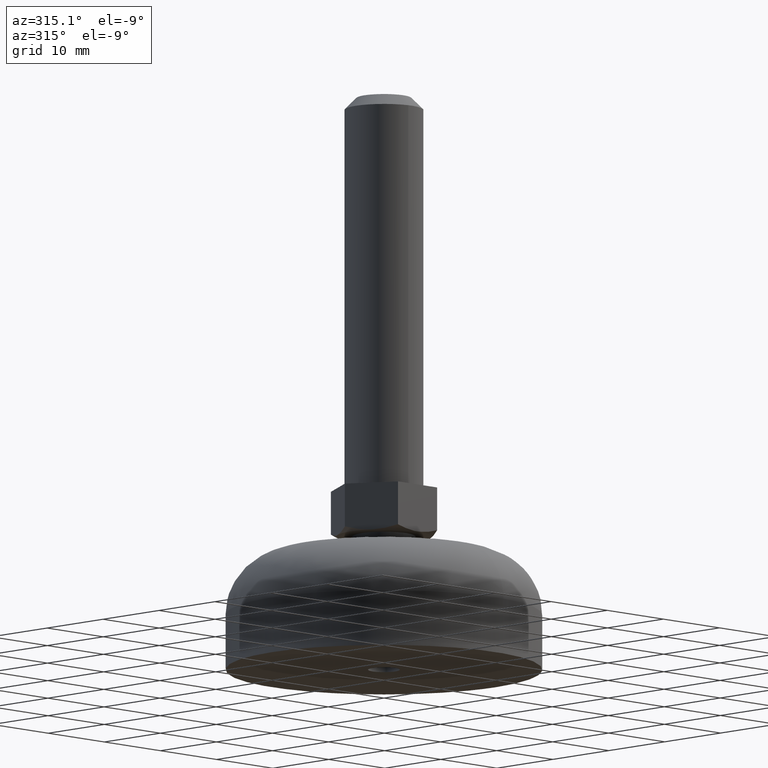
[diagram: clean part render]
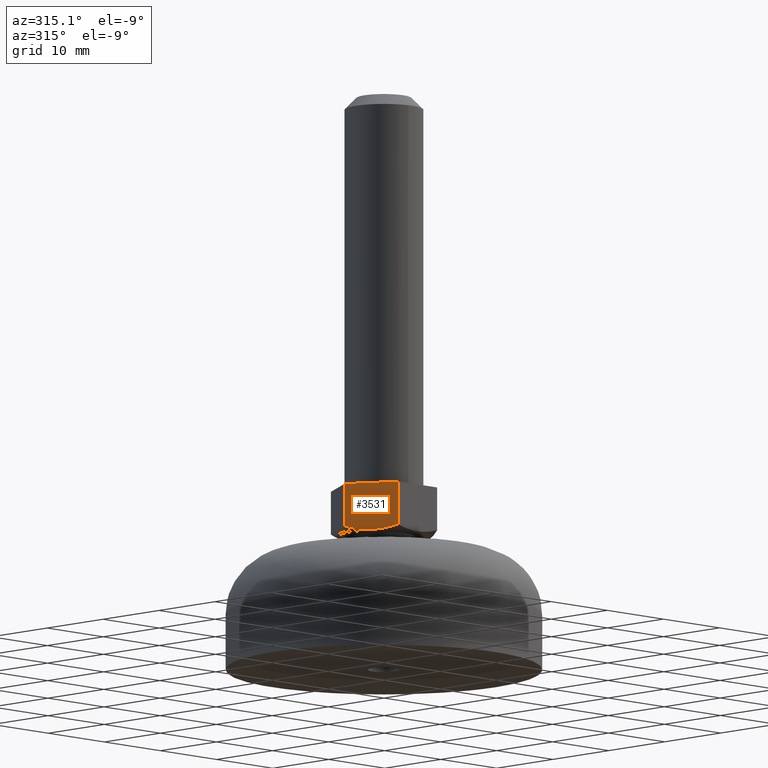
[diagram: same view with one face highlighted and labeled with its STEP entity id]
A machine part, auxiliary view. The second image highlights one B-rep face of the part: STEP entity #3531.
In plain terms, the highlighted face is a freeform B-spline surface patch.
Its self-contained STEP definition (entity closure, byte-faithful):
#3200=CARTESIAN_POINT('',(-5.306264120491100,-2.847033741227430,17.0));
#3201=VERTEX_POINT('',#3200);
#3215=CARTESIAN_POINT('',(-6.950000000000109,1.726595E-013,17.535898207287250));
#3216=VERTEX_POINT('',#3215);
#3217=CARTESIAN_POINT('',(-6.950000000000109,1.726595E-013,17.535898207287250));
#3218=CARTESIAN_POINT('',(-6.879360329342330,-0.122351485015763,17.495114177636360));
#3219=CARTESIAN_POINT('',(-6.808401424968022,-0.245255898986790,17.456009314224179));
#3220=CARTESIAN_POINT('',(-6.665765438361371,-0.492308647329619,17.381577195935900));
#3221=CARTESIAN_POINT('',(-6.594003248182062,-0.616604392973322,17.346215449534530));
#3222=CARTESIAN_POINT('',(-6.378667140723266,-0.989577430358704,17.246991003462860));
#3223=CARTESIAN_POINT('',(-6.234780773809750,-1.238795900681198,17.189844394180970));
#3224=CARTESIAN_POINT('',(-5.946241533789581,-1.738560468849519,17.096528896214121));
#3225=CARTESIAN_POINT('',(-5.801587940072925,-1.989107814828338,17.060379729164001));
#3226=CARTESIAN_POINT('',(-5.540038995470406,-2.442123825215766,17.016298090483780));
#3227=CARTESIAN_POINT('',(-5.423295203381585,-2.644329982116726,17.004217761828048));
#3228=CARTESIAN_POINT('',(-5.306264120491100,-2.847033741227430,17.0));
#3229=B_SPLINE_CURVE_WITH_KNOTS('',3,(#3217,#3218,#3219,#3220,#3221,#3222,#3223,#3224,#3225,#3226,#3227,#3228),.UNSPECIFIED.,.F.,.U.,(4,2,2,2,2,4),(0.0,0.062500000000000,0.125000000000000,0.250000000000000,0.375000000000000,0.475347351625508),.UNSPECIFIED.);
#3230=EDGE_CURVE('',#3216,#3201,#3229,.T.);
#3262=CARTESIAN_POINT('',(-5.118735300399310,-3.171843149423475,17.0));
#3263=VERTEX_POINT('',#3262);
#3264=CARTESIAN_POINT('',(-3.485898000000000,-6.0,17.529620733733751));
#3265=VERTEX_POINT('',#3264);
#3266=CARTESIAN_POINT('',(-5.118735300399310,-3.171843149423475,17.0));
#3267=CARTESIAN_POINT('',(-5.006333133774342,-3.366529391269072,17.004051782091310));
#3268=CARTESIAN_POINT('',(-4.893665406253888,-3.561675598027046,17.015371430764510));
#3269=CARTESIAN_POINT('',(-4.707307417387662,-3.884457067278635,17.045932240687311));
#3270=CARTESIAN_POINT('',(-4.633615198471618,-4.012095720383032,17.061044637505880));
#3271=CARTESIAN_POINT('',(-4.486782924604913,-4.266416650655936,17.096960834181001));
#3272=CARTESIAN_POINT('',(-4.413782220905879,-4.392857564403337,17.117713774961480));
#3273=CARTESIAN_POINT('',(-4.050687212254400,-5.021756497491587,17.234318049397022));
#3274=CARTESIAN_POINT('',(-3.766290252179322,-5.514346427132940,17.368498481351772));
#3275=CARTESIAN_POINT('',(-3.485898000000000,-6.0,17.529620733733751));
#3276=B_SPLINE_CURVE_WITH_KNOTS('',3,(#3266,#3267,#3268,#3269,#3270,#3271,#3272,#3273,#3274,#3275),.UNSPECIFIED.,.F.,.U.,(4,2,2,2,4),(0.528875177324876,0.625000000000001,0.687500000000001,0.750000000000001,1.0),.UNSPECIFIED.);
#3277=EDGE_CURVE('',#3263,#3265,#3276,.T.);
#3443=CARTESIAN_POINT('',(-6.949999999999999,0.0,23.0));
#3444=VERTEX_POINT('',#3443);
#3452=CARTESIAN_POINT('',(-3.485898000000000,-6.0,23.0));
#3453=VERTEX_POINT('',#3452);
#3454=CARTESIAN_POINT('',(-3.485898000000000,-6.0,23.0));
#3455=CARTESIAN_POINT('',(-6.949999999999999,0.0,23.0));
#3456=QUASI_UNIFORM_CURVE('',1,(#3454,#3455),.UNSPECIFIED.,.F.,.U.);
#3457=EDGE_CURVE('',#3453,#3444,#3456,.T.);
#3506=CARTESIAN_POINT('',(-7.123031855667507,0.299699932047307,16.700300011629160));
#3507=CARTESIAN_POINT('',(-3.312866020446666,-6.299700146623859,16.700300011629160));
#3508=CARTESIAN_POINT('',(-7.123031855667507,0.299699932047307,23.299700149303380));
#3509=CARTESIAN_POINT('',(-3.312866020446666,-6.299700146623859,23.299700149303380));
#3510=B_SPLINE_SURFACE_WITH_KNOTS('',1,1,((#3506,#3508),(#3507,#3509)),.UNSPECIFIED.,.F.,.F.,.U.,(2,2),(2,2),(0.0,7.620331035476682),(0.0,6.599400137674216),.UNSPECIFIED.);
#3511=CARTESIAN_POINT('',(-6.949999999999999,0.0,23.0));
#3512=CARTESIAN_POINT('',(-6.950000000000109,1.726595E-013,17.535898207287250));
#3513=QUASI_UNIFORM_CURVE('',1,(#3511,#3512),.UNSPECIFIED.,.F.,.U.);
#3514=EDGE_CURVE('',#3444,#3216,#3513,.T.);
#3515=ORIENTED_EDGE('',*,*,#3514,.T.);
#3516=ORIENTED_EDGE('',*,*,#3230,.T.);
#3517=CARTESIAN_POINT('',(-5.118735300399310,-3.171843149423475,17.0));
#3518=CARTESIAN_POINT('',(-5.306264120491100,-2.847033741227430,17.0));
#3519=QUASI_UNIFORM_CURVE('',1,(#3517,#3518),.UNSPECIFIED.,.F.,.U.);
#3520=EDGE_CURVE('',#3263,#3201,#3519,.T.);
#3521=ORIENTED_EDGE('',*,*,#3520,.F.);
#3522=ORIENTED_EDGE('',*,*,#3277,.T.);
#3523=CARTESIAN_POINT('',(-3.485898000000000,-6.0,23.0));
#3524=CARTESIAN_POINT('',(-3.485898000000000,-6.0,17.529620733733751));
#3525=QUASI_UNIFORM_CURVE('',1,(#3523,#3524),.UNSPECIFIED.,.F.,.U.);
#3526=EDGE_CURVE('',#3453,#3265,#3525,.T.);
#3527=ORIENTED_EDGE('',*,*,#3526,.F.);
#3528=ORIENTED_EDGE('',*,*,#3457,.T.);
#3529=EDGE_LOOP('',(#3515,#3516,#3521,#3522,#3527,#3528));
#3530=FACE_OUTER_BOUND('',#3529,.T.);
#3531=ADVANCED_FACE('',(#3530),#3510,.T.);